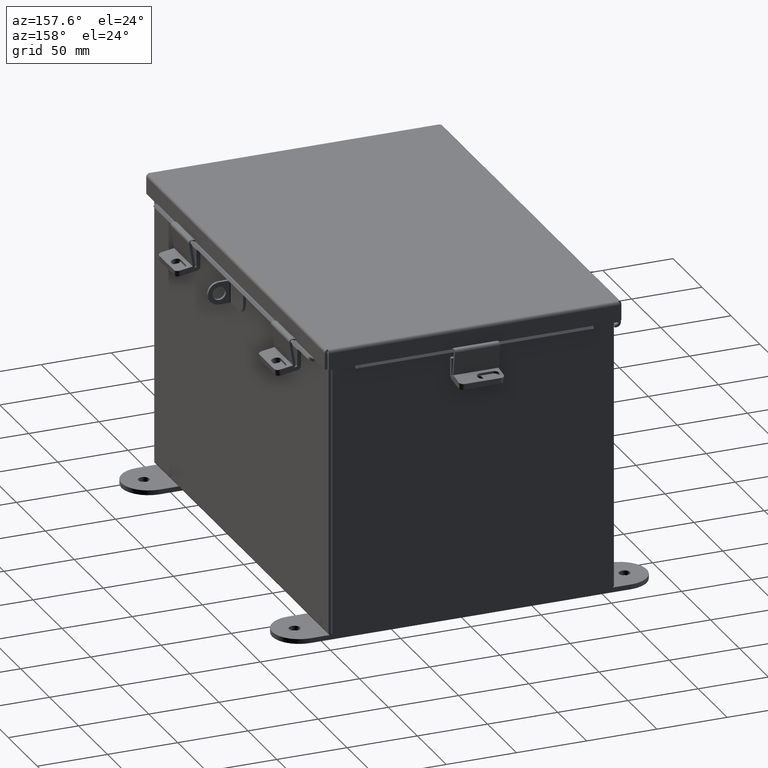
[diagram: clean part render]
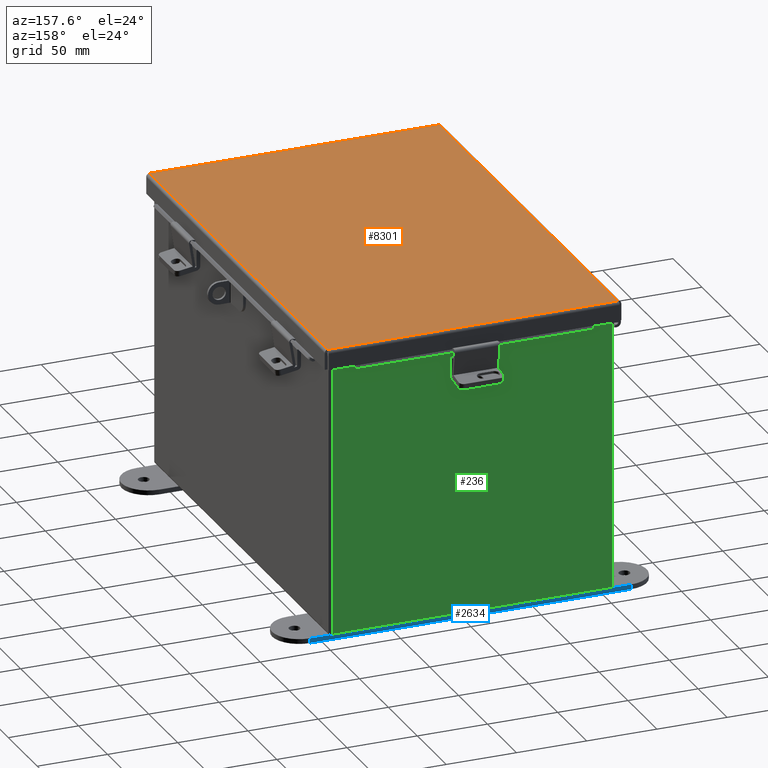
[diagram: same view with three faces highlighted in distinct colors, each labeled with its STEP entity id]
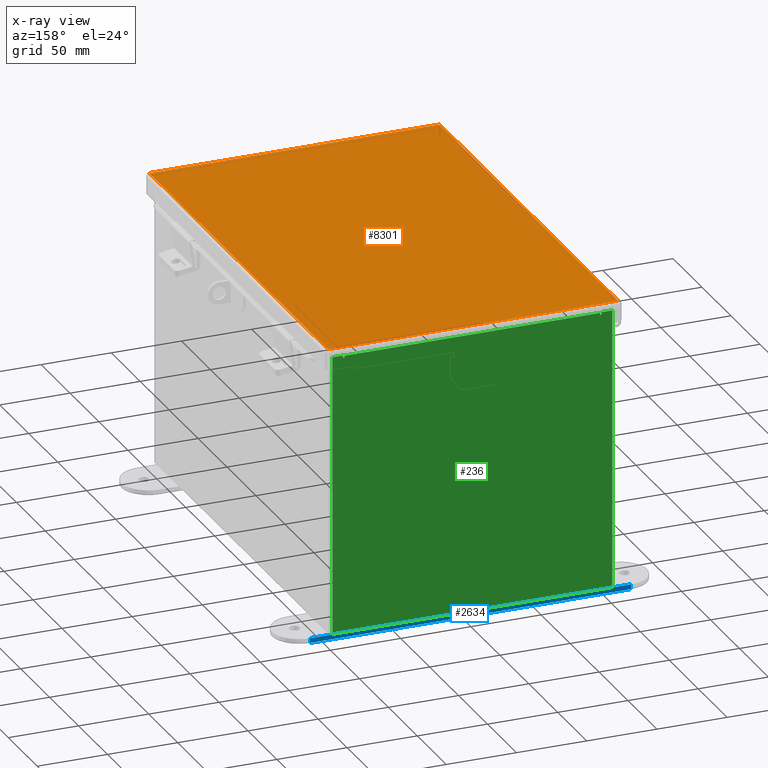
[diagram: x-ray of the same camera — body ghosted, the three highlighted faces saturated]
A machine part, auxiliary view with three faces highlighted in distinct colors.
The next image is the same camera in x-ray (body ghosted, the three faces saturated) — at least one of them is partly hidden behind the body in this view.
Their STEP definitions:

[orange] entity #8301 — the highlighted planar face has unit normal (-0, -0, 1).
#245 = CARTESIAN_POINT ( 'NONE',  ( -4.068550000000025900, -6.074478932188137400, -0.07470000000000015500 ) ) ;
#285 = ORIENTED_EDGE ( 'NONE', *, *, #9685, .T. ) ;
#836 = DIRECTION ( 'NONE',  ( 1.000000000000000000, 3.314977852290138900E-030, 1.577721810442017300E-030 ) ) ;
#1023 = AXIS2_PLACEMENT_3D ( 'NONE', #7600, #10002, #2823 ) ;
#1255 = VERTEX_POINT ( 'NONE', #7269 ) ;
#2385 = FACE_OUTER_BOUND ( 'NONE', #13985, .T. ) ;
#2473 = ORIENTED_EDGE ( 'NONE', *, *, #12349, .T. ) ;
#2554 = LINE ( 'NONE', #6774, #8917 ) ;
#2823 = DIRECTION ( 'NONE',  ( -1.000000000000000000, -3.314977852290138900E-030, -1.577721810442017300E-030 ) ) ;
#3262 = ORIENTED_EDGE ( 'NONE', *, *, #9743, .T. ) ;
#5291 = VERTEX_POINT ( 'NONE', #9880 ) ;
#5550 = VECTOR ( 'NONE', #9775, 39.37007874015748100 ) ;
#6393 = PLANE ( 'NONE',  #1023 ) ;
#6471 = ORIENTED_EDGE ( 'NONE', *, *, #9974, .T. ) ;
#6489 = LINE ( 'NONE', #10242, #12533 ) ;
#6774 = CARTESIAN_POINT ( 'NONE',  ( -4.074478932188162300, 6.068549999999999200, -0.07469999999999907300 ) ) ;
#7269 = CARTESIAN_POINT ( 'NONE',  ( 4.068550000000013400, 6.068549999999999200, -0.07470000000000015500 ) ) ;
#7403 = DIRECTION ( 'NONE',  ( -3.265674045713817900E-030, -1.000000000000000000, 3.204747427460360500E-030 ) ) ;
#7600 = CARTESIAN_POINT ( 'NONE',  ( 0.0000000000000000000, 0.0000000000000000000, -0.07470000000000015500 ) ) ;
#8301 = ADVANCED_FACE ( 'NONE', ( #2385 ), #6393, .T. ) ;
#8320 = VERTEX_POINT ( 'NONE', #8741 ) ;
#8510 = CARTESIAN_POINT ( 'NONE',  ( 4.068550000000013400, 6.074478932188134700, -0.07470000000000015500 ) ) ;
#8741 = CARTESIAN_POINT ( 'NONE',  ( 4.068550000000013400, -6.068550000000001000, -0.07470000000000015500 ) ) ;
#8845 = LINE ( 'NONE', #8510, #14864 ) ;
#8917 = VECTOR ( 'NONE', #836, 39.37007874015748100 ) ;
#9685 = EDGE_CURVE ( 'NONE', #8320, #14527, #6489, .T. ) ;
#9743 = EDGE_CURVE ( 'NONE', #5291, #1255, #2554, .T. ) ;
#9775 = DIRECTION ( 'NONE',  ( 3.265674045713817900E-030, 1.000000000000000000, -3.204747427460360500E-030 ) ) ;
#9880 = CARTESIAN_POINT ( 'NONE',  ( -4.068550000000026800, 6.068549999999999200, -0.07469999999999907300 ) ) ;
#9974 = EDGE_CURVE ( 'NONE', #14527, #5291, #15534, .T. ) ;
#10002 = DIRECTION ( 'NONE',  ( 1.577721810442017300E-030, 3.278703137324817700E-030, -1.000000000000000000 ) ) ;
#10242 = CARTESIAN_POINT ( 'NONE',  ( 4.074478932188148900, -6.068550000000001000, -0.07470000000000015500 ) ) ;
#10633 = CARTESIAN_POINT ( 'NONE',  ( -4.068550000000025900, -6.068550000000001000, -0.07470000000000015500 ) ) ;
#11469 = DIRECTION ( 'NONE',  ( -1.000000000000000000, -3.314977852290138900E-030, -1.577721810442017300E-030 ) ) ;
#12349 = EDGE_CURVE ( 'NONE', #1255, #8320, #8845, .T. ) ;
#12533 = VECTOR ( 'NONE', #11469, 39.37007874015748100 ) ;
#13985 = EDGE_LOOP ( 'NONE', ( #3262, #2473, #285, #6471 ) ) ;
#14527 = VERTEX_POINT ( 'NONE', #10633 ) ;
#14864 = VECTOR ( 'NONE', #7403, 39.37007874015748100 ) ;
#15534 = LINE ( 'NONE', #245, #5550 ) ;

[blue] entity #2634 — the highlighted planar face has unit normal (-0, 1, -0).
#70 = LINE ( 'NONE', #2746, #12434 ) ;
#553 = VECTOR ( 'NONE', #13886, 39.37007874015748100 ) ;
#932 = LINE ( 'NONE', #1868, #553 ) ;
#1187 = AXIS2_PLACEMENT_3D ( 'NONE', #12662, #12415, #5222 ) ;
#1868 = CARTESIAN_POINT ( 'NONE',  ( 4.499999999999999100, -0.3379059350503883000, -0.1345000000000000100 ) ) ;
#2634 = ADVANCED_FACE ( 'NONE', ( #14521 ), #10153, .T. ) ;
#2746 = CARTESIAN_POINT ( 'NONE',  ( -4.499999999999999100, -0.3379059350503871900, 0.0000000000000000000 ) ) ;
#3086 = CARTESIAN_POINT ( 'NONE',  ( 4.499999999999999100, -0.3379059350503883000, 0.0000000000000000000 ) ) ;
#3401 = CARTESIAN_POINT ( 'NONE',  ( 4.499999999999999100, -0.3379059350503883000, -0.1345000000000000100 ) ) ;
#3448 = DIRECTION ( 'NONE',  ( 0.0000000000000000000, 0.0000000000000000000, 1.000000000000000000 ) ) ;
#4430 = CARTESIAN_POINT ( 'NONE',  ( -4.499999999999999100, -0.3379059350503871900, -0.1345000000000000100 ) ) ;
#5171 = EDGE_LOOP ( 'NONE', ( #13920, #11639, #10082, #7141 ) ) ;
#5222 = DIRECTION ( 'NONE',  ( 1.000000000000000000, -1.214154663850783900E-016, 0.0000000000000000000 ) ) ;
#6369 = DIRECTION ( 'NONE',  ( 1.000000000000000000, -1.214154663850783900E-016, 0.0000000000000000000 ) ) ;
#6976 = CARTESIAN_POINT ( 'NONE',  ( -4.499999999999999100, -0.3379059350503871900, -0.1345000000000000100 ) ) ;
#7141 = ORIENTED_EDGE ( 'NONE', *, *, #14785, .T. ) ;
#7498 = VECTOR ( 'NONE', #3448, 39.37007874015748100 ) ;
#8049 = VERTEX_POINT ( 'NONE', #6976 ) ;
#10082 = ORIENTED_EDGE ( 'NONE', *, *, #14845, .T. ) ;
#10153 = PLANE ( 'NONE',  #1187 ) ;
#10929 = VERTEX_POINT ( 'NONE', #12746 ) ;
#11082 = LINE ( 'NONE', #11857, #7498 ) ;
#11639 = ORIENTED_EDGE ( 'NONE', *, *, #13209, .F. ) ;
#11857 = CARTESIAN_POINT ( 'NONE',  ( -4.499999999999999100, -0.3379059350503871900, -0.1345000000000000100 ) ) ;
#11956 = VERTEX_POINT ( 'NONE', #3086 ) ;
#12117 = VERTEX_POINT ( 'NONE', #3401 ) ;
#12415 = DIRECTION ( 'NONE',  ( -1.214154663850783900E-016, -1.000000000000000000, 0.0000000000000000000 ) ) ;
#12434 = VECTOR ( 'NONE', #6369, 39.37007874015748100 ) ;
#12569 = VECTOR ( 'NONE', #12865, 39.37007874015748100 ) ;
#12662 = CARTESIAN_POINT ( 'NONE',  ( -4.499999999999999100, -0.3379059350503871900, -0.1345000000000000100 ) ) ;
#12746 = CARTESIAN_POINT ( 'NONE',  ( -4.499999999999999100, -0.3379059350503871900, 0.0000000000000000000 ) ) ;
#12818 = EDGE_CURVE ( 'NONE', #10929, #11956, #70, .T. ) ;
#12865 = DIRECTION ( 'NONE',  ( 1.000000000000000000, -1.214154663850783900E-016, 0.0000000000000000000 ) ) ;
#13209 = EDGE_CURVE ( 'NONE', #8049, #10929, #11082, .T. ) ;
#13886 = DIRECTION ( 'NONE',  ( 0.0000000000000000000, 0.0000000000000000000, 1.000000000000000000 ) ) ;
#13920 = ORIENTED_EDGE ( 'NONE', *, *, #12818, .F. ) ;
#14521 = FACE_OUTER_BOUND ( 'NONE', #5171, .T. ) ;
#14785 = EDGE_CURVE ( 'NONE', #12117, #11956, #932, .T. ) ;
#14845 = EDGE_CURVE ( 'NONE', #8049, #12117, #15394, .T. ) ;
#15394 = LINE ( 'NONE', #4430, #12569 ) ;

[green] entity #236 — the highlighted planar face has unit normal (0, -1, 0).
#86 = VECTOR ( 'NONE', #14544, 39.37007874015748100 ) ;
#236 = ADVANCED_FACE ( 'NONE', ( #13488 ), #716, .F. ) ;
#271 = VERTEX_POINT ( 'NONE', #2949 ) ;
#339 = LINE ( 'NONE', #4734, #3125 ) ;
#573 = CARTESIAN_POINT ( 'NONE',  ( -3.619650000000000500, 0.0000000000000000000, 3.874949999999999200 ) ) ;
#716 = PLANE ( 'NONE',  #5450 ) ;
#931 = DIRECTION ( 'NONE',  ( 1.000000000000000000, 0.0000000000000000000, 0.0000000000000000000 ) ) ;
#1011 = CIRCLE ( 'NONE', #6436, 0.01867500000000003900 ) ;
#1141 = CARTESIAN_POINT ( 'NONE',  ( -3.925300000000000500, 0.0000000000000000000, 3.925299999999999100 ) ) ;
#1290 = EDGE_CURVE ( 'NONE', #12589, #4399, #9474, .T. ) ;
#1355 = LINE ( 'NONE', #8648, #13716 ) ;
#1378 = LINE ( 'NONE', #4001, #6965 ) ;
#1384 = CARTESIAN_POINT ( 'NONE',  ( 3.582299999999999200, 0.0000000000000000000, 0.0000000000000000000 ) ) ;
#1529 = EDGE_CURVE ( 'NONE', #4399, #15528, #12518, .T. ) ;
#1540 = DIRECTION ( 'NONE',  ( 1.000000000000000000, 0.0000000000000000000, 0.0000000000000000000 ) ) ;
#1577 = DIRECTION ( 'NONE',  ( -2.170286390199978800E-014, 0.0000000000000000000, -1.000000000000000000 ) ) ;
#1955 = CARTESIAN_POINT ( 'NONE',  ( -3.619650000000000500, 0.0000000000000000000, 3.925299999999999100 ) ) ;
#2158 = ORIENTED_EDGE ( 'NONE', *, *, #14735, .T. ) ;
#2236 = VECTOR ( 'NONE', #10695, 39.37007874015748100 ) ;
#2589 = VERTEX_POINT ( 'NONE', #12748 ) ;
#2610 = LINE ( 'NONE', #1141, #2236 ) ;
#2763 = CARTESIAN_POINT ( 'NONE',  ( 3.619649999999915200, 0.0000000000000000000, -7.867722221753078700E-014 ) ) ;
#2949 = CARTESIAN_POINT ( 'NONE',  ( 3.582299999999999200, 0.0000000000000000000, 3.874949999999999200 ) ) ;
#3125 = VECTOR ( 'NONE', #5952, 39.37007874015748100 ) ;
#3171 = ORIENTED_EDGE ( 'NONE', *, *, #1290, .F. ) ;
#3324 = CARTESIAN_POINT ( 'NONE',  ( 3.925299999999999100, 0.0000000000000000000, 3.925299999999999100 ) ) ;
#3583 = EDGE_CURVE ( 'NONE', #13478, #12589, #12453, .T. ) ;
#3755 = VECTOR ( 'NONE', #931, 39.37007874015748100 ) ;
#3995 = VECTOR ( 'NONE', #8723, 39.37007874015748100 ) ;
#4001 = CARTESIAN_POINT ( 'NONE',  ( 3.925299999999999100, 0.0000000000000000000, 3.925299999999999100 ) ) ;
#4399 = VERTEX_POINT ( 'NONE', #573 ) ;
#4598 = ORIENTED_EDGE ( 'NONE', *, *, #12491, .T. ) ;
#4734 = CARTESIAN_POINT ( 'NONE',  ( -3.925300000000000500, 0.0000000000000000000, -3.925300000000000500 ) ) ;
#4871 = VERTEX_POINT ( 'NONE', #9715 ) ;
#5210 = DIRECTION ( 'NONE',  ( 0.0000000000000000000, 0.0000000000000000000, -1.000000000000000000 ) ) ;
#5450 = AXIS2_PLACEMENT_3D ( 'NONE', #8202, #7943, #12568 ) ;
#5538 = ORIENTED_EDGE ( 'NONE', *, *, #9929, .T. ) ;
#5952 = DIRECTION ( 'NONE',  ( -1.000000000000000000, -0.0000000000000000000, -0.0000000000000000000 ) ) ;
#6056 = ORIENTED_EDGE ( 'NONE', *, *, #3583, .F. ) ;
#6350 = CARTESIAN_POINT ( 'NONE',  ( -3.582300000000000000, 1.092739197465705300E-015, 3.912299999999999200 ) ) ;
#6408 = DIRECTION ( 'NONE',  ( -0.0000000000000000000, 1.000000000000000000, -0.0000000000000000000 ) ) ;
#6436 = AXIS2_PLACEMENT_3D ( 'NONE', #13627, #6408, #14805 ) ;
#6467 = DIRECTION ( 'NONE',  ( -0.0000000000000000000, 1.000000000000000000, -0.0000000000000000000 ) ) ;
#6625 = ORIENTED_EDGE ( 'NONE', *, *, #12459, .F. ) ;
#6912 = ORIENTED_EDGE ( 'NONE', *, *, #14189, .F. ) ;
#6965 = VECTOR ( 'NONE', #5210, 39.37007874015748100 ) ;
#7097 = CARTESIAN_POINT ( 'NONE',  ( 3.582299999999999200, 0.0000000000000000000, 3.912299999999999200 ) ) ;
#7252 = CARTESIAN_POINT ( 'NONE',  ( 3.619649999999999100, 0.0000000000000000000, 3.874949999999999200 ) ) ;
#7424 = VERTEX_POINT ( 'NONE', #7097 ) ;
#7734 = CARTESIAN_POINT ( 'NONE',  ( -3.925300000000000500, 0.0000000000000000000, 3.925299999999999100 ) ) ;
#7943 = DIRECTION ( 'NONE',  ( 0.0000000000000000000, -1.000000000000000000, 0.0000000000000000000 ) ) ;
#8202 = CARTESIAN_POINT ( 'NONE',  ( 0.0000000000000000000, 0.0000000000000000000, 0.0000000000000000000 ) ) ;
#8544 = CARTESIAN_POINT ( 'NONE',  ( 3.619650000000000500, 0.0000000000000000000, 3.925299999999999100 ) ) ;
#8648 = CARTESIAN_POINT ( 'NONE',  ( -3.582300000000000000, 1.092739197465705300E-015, 3.912299999999999200 ) ) ;
#8723 = DIRECTION ( 'NONE',  ( 0.0000000000000000000, 0.0000000000000000000, 1.000000000000000000 ) ) ;
#8937 = ORIENTED_EDGE ( 'NONE', *, *, #1529, .F. ) ;
#9093 = EDGE_LOOP ( 'NONE', ( #8937, #3171, #6056, #10650, #12050, #6625, #6912, #13386, #4598, #5538, #10214, #2158 ) ) ;
#9474 = CIRCLE ( 'NONE', #14231, 0.01867500000000003900 ) ;
#9665 = VECTOR ( 'NONE', #9905, 39.37007874015748100 ) ;
#9715 = CARTESIAN_POINT ( 'NONE',  ( -3.925300000000000500, 0.0000000000000000000, -3.925300000000000500 ) ) ;
#9905 = DIRECTION ( 'NONE',  ( 0.0000000000000000000, 0.0000000000000000000, 1.000000000000000000 ) ) ;
#9929 = EDGE_CURVE ( 'NONE', #2589, #4871, #339, .T. ) ;
#10085 = DIRECTION ( 'NONE',  ( 0.0000000000000000000, 0.0000000000000000000, -1.000000000000000000 ) ) ;
#10177 = VERTEX_POINT ( 'NONE', #7734 ) ;
#10214 = ORIENTED_EDGE ( 'NONE', *, *, #13897, .T. ) ;
#10436 = CARTESIAN_POINT ( 'NONE',  ( -3.925300000000000500, 0.0000000000000000000, 3.925299999999999100 ) ) ;
#10466 = LINE ( 'NONE', #13680, #13673 ) ;
#10577 = CARTESIAN_POINT ( 'NONE',  ( -3.582300000000000000, 0.0000000000000000000, 0.0000000000000000000 ) ) ;
#10650 = ORIENTED_EDGE ( 'NONE', *, *, #13449, .T. ) ;
#10695 = DIRECTION ( 'NONE',  ( -0.0000000000000000000, -0.0000000000000000000, 1.000000000000000000 ) ) ;
#11243 = LINE ( 'NONE', #2763, #11634 ) ;
#11545 = VERTEX_POINT ( 'NONE', #3324 ) ;
#11634 = VECTOR ( 'NONE', #1577, 39.37007874015748100 ) ;
#11757 = EDGE_CURVE ( 'NONE', #271, #7424, #12855, .T. ) ;
#12050 = ORIENTED_EDGE ( 'NONE', *, *, #11757, .F. ) ;
#12380 = CARTESIAN_POINT ( 'NONE',  ( -3.600975000000000000, 0.0000000000000000000, 3.874949999999999200 ) ) ;
#12453 = LINE ( 'NONE', #10577, #86 ) ;
#12459 = EDGE_CURVE ( 'NONE', #13342, #271, #1011, .T. ) ;
#12491 = EDGE_CURVE ( 'NONE', #11545, #2589, #1378, .T. ) ;
#12518 = LINE ( 'NONE', #13413, #9665 ) ;
#12568 = DIRECTION ( 'NONE',  ( 0.0000000000000000000, -0.0000000000000000000, -1.000000000000000000 ) ) ;
#12586 = CARTESIAN_POINT ( 'NONE',  ( -3.582300000000000000, 0.0000000000000000000, 3.874949999999999200 ) ) ;
#12589 = VERTEX_POINT ( 'NONE', #12586 ) ;
#12748 = CARTESIAN_POINT ( 'NONE',  ( 3.925299999999999100, 0.0000000000000000000, -3.925300000000000500 ) ) ;
#12855 = LINE ( 'NONE', #1384, #3995 ) ;
#13338 = LINE ( 'NONE', #10436, #3755 ) ;
#13342 = VERTEX_POINT ( 'NONE', #7252 ) ;
#13386 = ORIENTED_EDGE ( 'NONE', *, *, #13757, .T. ) ;
#13413 = CARTESIAN_POINT ( 'NONE',  ( -3.619650000000000500, 0.0000000000000000000, 0.0000000000000000000 ) ) ;
#13449 = EDGE_CURVE ( 'NONE', #13478, #7424, #1355, .T. ) ;
#13478 = VERTEX_POINT ( 'NONE', #6350 ) ;
#13488 = FACE_OUTER_BOUND ( 'NONE', #9093, .T. ) ;
#13627 = CARTESIAN_POINT ( 'NONE',  ( 3.600974999999999100, 0.0000000000000000000, 3.874949999999999200 ) ) ;
#13673 = VECTOR ( 'NONE', #14878, 39.37007874015748100 ) ;
#13680 = CARTESIAN_POINT ( 'NONE',  ( -3.925300000000000500, 0.0000000000000000000, 3.925299999999999100 ) ) ;
#13716 = VECTOR ( 'NONE', #1540, 39.37007874015748100 ) ;
#13757 = EDGE_CURVE ( 'NONE', #14074, #11545, #13338, .T. ) ;
#13897 = EDGE_CURVE ( 'NONE', #4871, #10177, #2610, .T. ) ;
#14074 = VERTEX_POINT ( 'NONE', #8544 ) ;
#14189 = EDGE_CURVE ( 'NONE', #14074, #13342, #11243, .T. ) ;
#14231 = AXIS2_PLACEMENT_3D ( 'NONE', #12380, #6467, #10085 ) ;
#14544 = DIRECTION ( 'NONE',  ( 0.0000000000000000000, 0.0000000000000000000, -1.000000000000000000 ) ) ;
#14735 = EDGE_CURVE ( 'NONE', #10177, #15528, #10466, .T. ) ;
#14805 = DIRECTION ( 'NONE',  ( 0.0000000000000000000, 0.0000000000000000000, -1.000000000000000000 ) ) ;
#14878 = DIRECTION ( 'NONE',  ( 1.000000000000000000, 0.0000000000000000000, 0.0000000000000000000 ) ) ;
#15528 = VERTEX_POINT ( 'NONE', #1955 ) ;